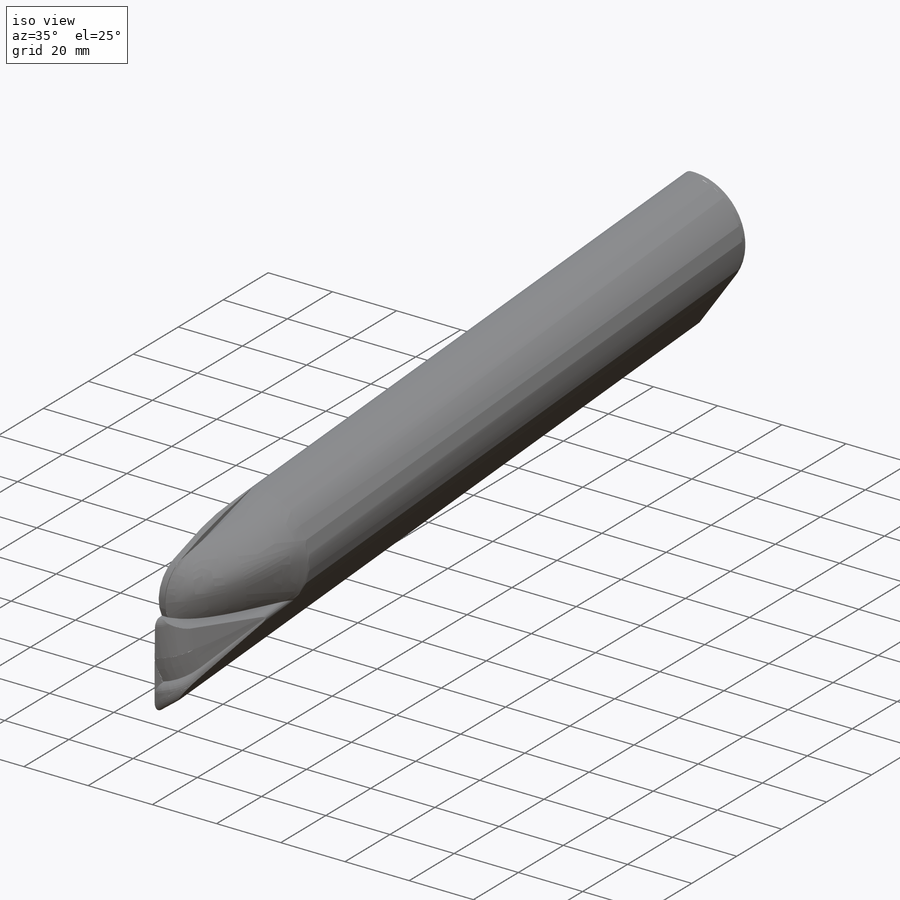
[diagram: iso view]
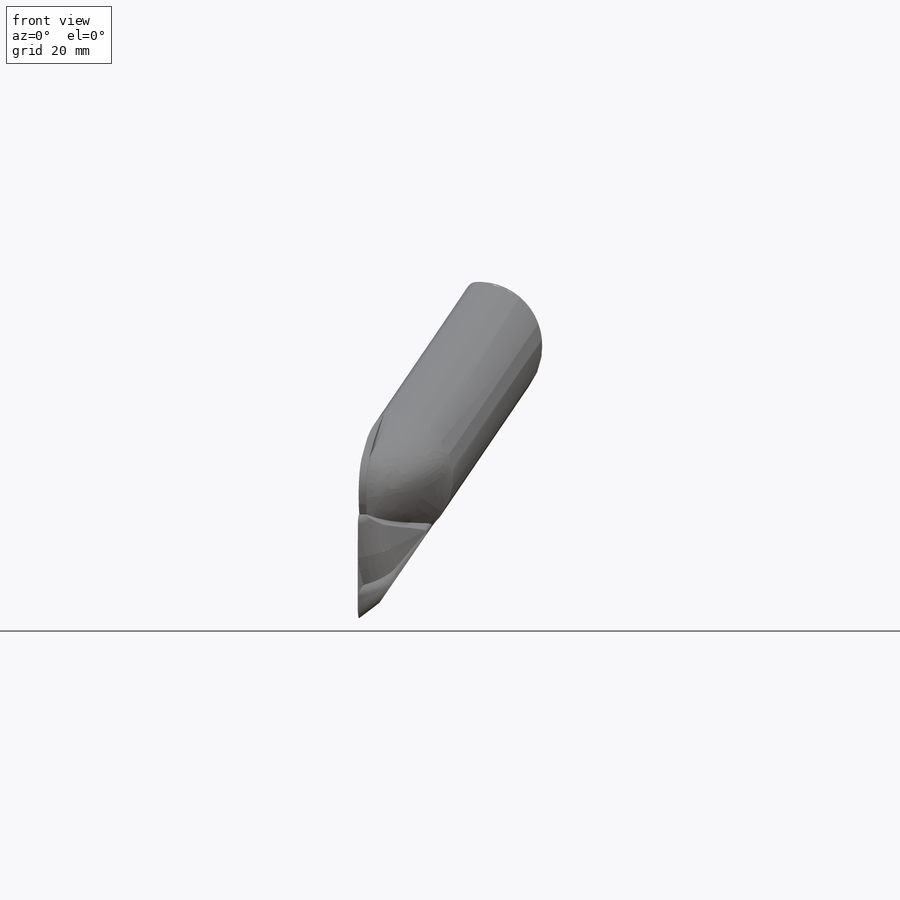
[diagram: front view]
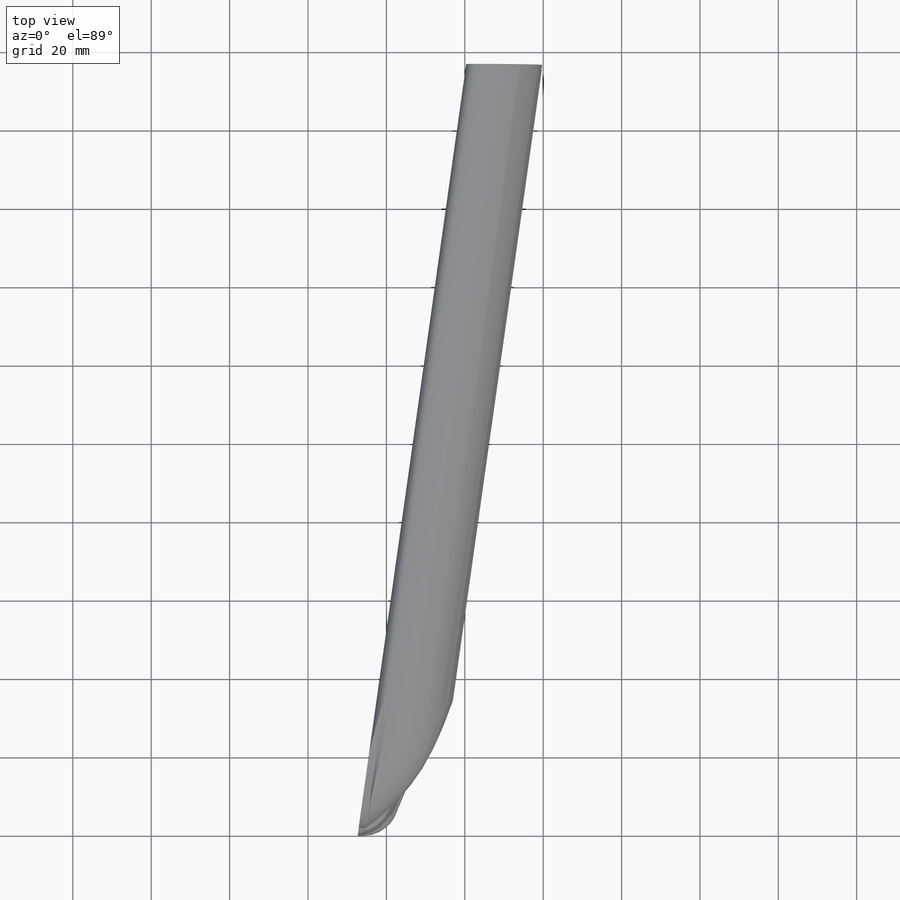
[diagram: top view]
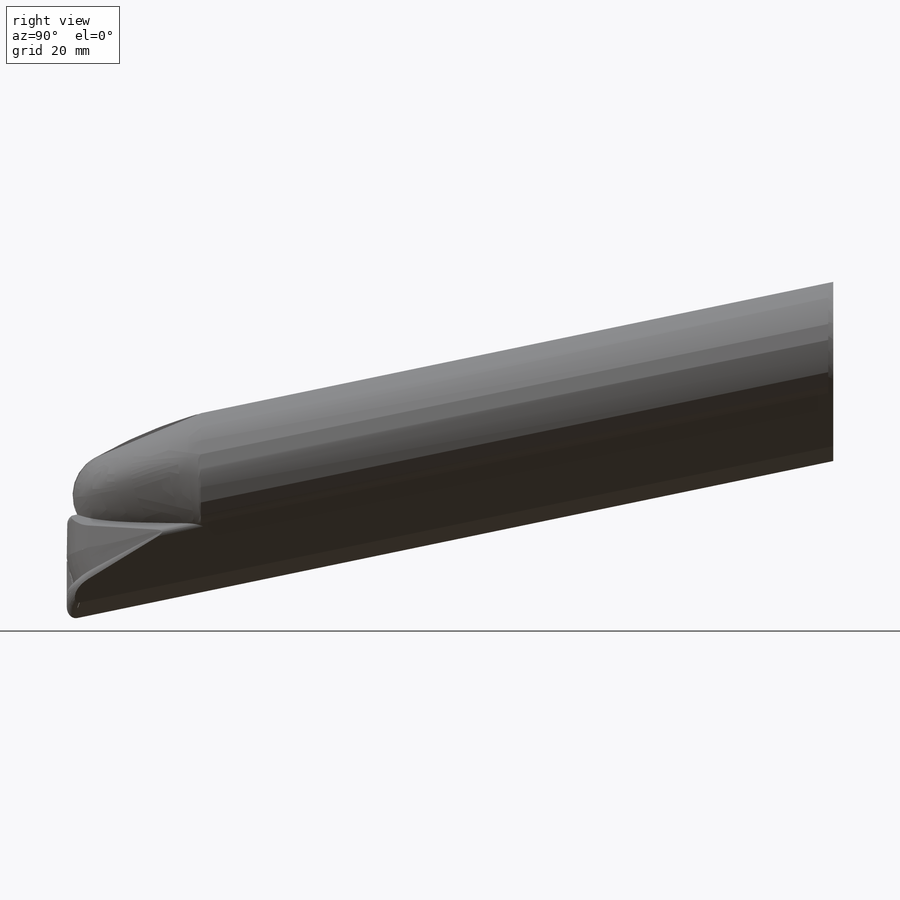
[diagram: right view]
SOLIDWORKS PART (.sldprt)
format: sldprt  version: not decoded by parser v0  size: 2,214,912 bytes
history: native  units: mm
features: sketch x29, plane x19, fillet x9, mirror x8, cut_extrude x6, extrude x3, material x1, sweep x1, cut_revolve x1 (+13 scaffold rows collapsed)
feature tree (90):
  scaffold x13  (default folders/planes/origin — collapsed)
  material  "Material <not specified>"
  sketch  "Sketch1"  dims[c1.D1=3.81mm c1.D2=45.72mm c1.D3=5.08mm c1.D4=3.81mm c1.D5=16.51mm c1.D6=11.43mm c1.D7=12.7mm c1.D8=~40.624221mm c1.D9=~27.667962mm c1.D10=~8.404742mm c2.D10=125.0deg c3.D10=~4.331181mm c4.D10=135.0deg c4.D11=10.16mm]
  plane  "Plane1"  Offset=195.58mm
  sketch  "Sketch2"  dims[D1=3.81mm D2=45.72mm D3=5.08mm D4=3.81mm D5=11.43mm D6=16.51mm]
  plane  "Plane2"  Offset=1.27mm
  plane  "Plane3"  Offset=1.27mm
  sketch  "Sketch3"  dims[D1=12.7mm]
  sketch  "Sketch4"  dims[D1=12.7mm]
  plane  "Plane4"
  plane  "Plane6"  Offset=5.08mm
  sketch  "Sketch6"  dims[D1=6.35mm D2=6.35mm]
  extrude  "Boss-Extrude1"  [1 undecoded]
  fillet  "Fillet1"  Radius=2.54mm
  sketch  "Sketch7"
  cut_extrude  "Cut-Extrude1"  Depth=2.54mm
  sketch  "Sketch8"  dims[D1=3.81mm D2=1.27mm D3=30.48mm]
  extrude  "Boss-Extrude2"  Depth=2.54mm
  mirror  "Mirror1"
  mirror  "Mirror2"
  plane  "Plane7"
  plane  "Plane8"  Offset=5.08mm
  sketch  "Sketch9"  dims[c1.D1=6.35mm c1.D2=6.35mm c2.D1=6.35mm]
  extrude  "Boss-Extrude3"  [1 undecoded]
  fillet  "Fillet2"  Radius=2.54mm
  mirror  "Mirror4"
  sketch  "Sketch10"  dims[D1=2.54mm D2=2.54mm D3=2.54mm]
  cut_extrude  "Cut-Extrude2"  Depth=2.54mm
  mirror  "Mirror5"
  sketch  "Sketch11"  dims[D2=3.175mm D1=1.905mm D3=46.0]
  cut_extrude  "Cut-Extrude3"  Depth=0.508mm
  mirror  "Mirror6"
  sketch  "Sketch12"  dims[c1.D1=~16.390687mm c1.D2=~16.390687mm c1.D3=1.905mm c2.D1=1.27mm c2.D2=1.27mm]
  sketch  "Sketch13"  dims[D1=165.1mm]
  sweep  "Sweep1"
  mirror  "Mirror7"
  sketch  "Sketch14"
  sketch  "Sketch15"  dims[c1.D7=10.414mm c2.D7=11.684mm c2.D8=~8.723161mm c2.D1=1.27mm c2.D2=1.016mm c3.D2=2.032mm c3.D3=25.4mm c3.D4=11.43mm c3.D5=25.4mm c3.D6=2.54mm c4.D2=1.27mm c4.D8=2.032mm c4.D6=3.302mm]
  plane  "Plane9"
  sketch  "Sketch16"  dims[D3=69.85mm D1=11.43mm D2=3.81mm]
  sketch  "Sketch17"  dims[D1=7.62mm]
  plane  "Plane11"
  sketch  "Sketch20"  dims[D1=44.45mm]
  plane  "Plane12"
  sketch  "Sketch23"
  sketch  "Sketch25"  dims[D5=11.684mm D1=25.4mm D2=11.43mm D3=1.27mm D4=2.032mm D6=25.4mm D7=1.27mm D8=3.302mm]
  sketch  "Sketch26"
  plane  "Plane13"
  sketch  "Sketch27"  dims[D3=69.85mm D1=3.81mm D2=11.43mm]
  plane  "Plane14"
  sketch  "Sketch29"  dims[D1=44.45mm]
  plane  "Plane15"
  sketch  "Sketch30"
  sketch  "Sketch31"  dims[D1=7.62mm]
  sketch  "Sketch14<4>"
  sketch  "Sketch32"  dims[D1=10.922mm D2=38.1mm]
  cut_extrude  "Cut-Extrude4"  Depth=2.54mm
  plane  "Plane16"
  plane  "Plane17"  Offset=2.54mm
  sketch  "Sketch33"
  cut_extrude  "Cut-Extrude5"  [1 undecoded]
  mirror  "Mirror8"
  fillet  "Fillet3"  Radius=1.27mm
  fillet  "Fillet4"  Radius=10.16mm
  fillet  "Fillet5"  Radius=2.54mm
  fillet  "Fillet6"  Radius=2.54mm
  fillet  "Fillet7"  Radius=2.54mm
  plane  "Plane18"
  plane  "Plane19"
  plane  "Plane20"
  sketch  "Sketch34"  dims[D1=10.16mm D2=10922.0mm D6=10.414mm D7=1079.5mm D3=0.127mm D4=0.254mm D5=0.1905mm D8=~15.349713mm D9=38.1mm]
  cut_revolve  "Cut-Revolve1"  Angle=25deg
  mirror  "Mirror9"
  fillet  "Fillet8"  Radius=2.54mm
  fillet  "Fillet9"  Radius=5.08mm
  plane  "Plane22"  Offset=2.54mm
  sketch  "Sketch36"  dims[D1=254.0mm D2=177.8mm D3=12.7mm]
  cut_extrude  "Cut-Extrude7"  Depth=2.54mm
decode coverage: 38 of 57 modeling features carry decoded parameters
note: ~ marks probable driven/reference dimensions
note: 3 parameter values undecoded
summary: no parameter record found for 3 features
note: suppression state not decoded; provenance and decode notes live in map.json
